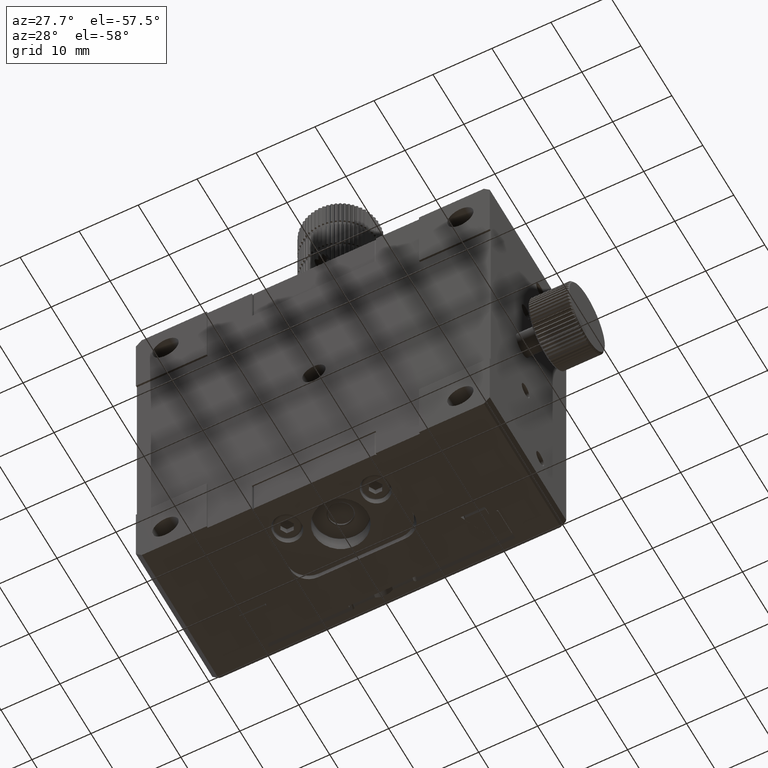
[diagram: clean part render]
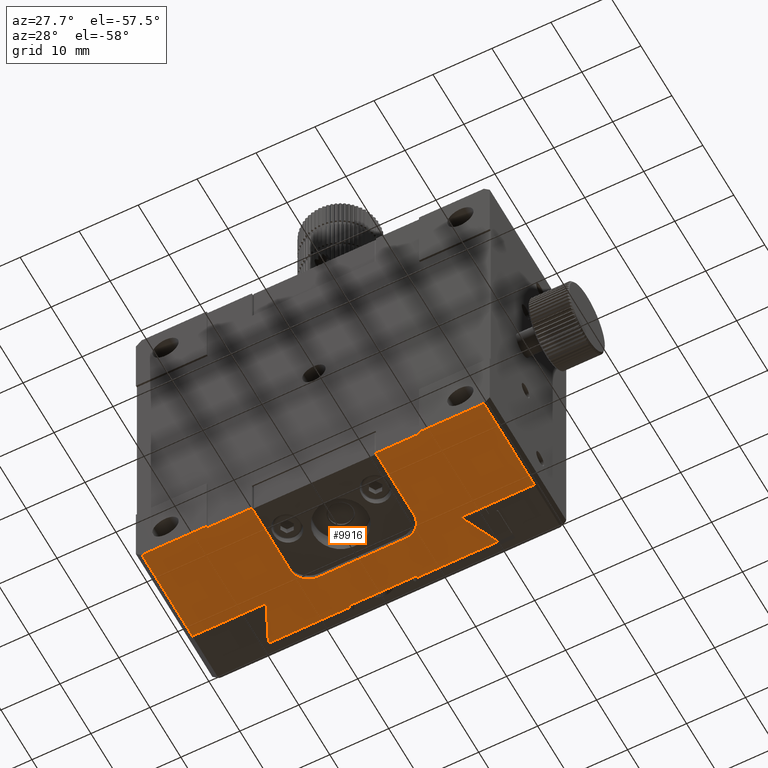
[diagram: same view with one face highlighted and labeled with its STEP entity id]
A machine part, auxiliary view. The second image highlights one B-rep face of the part: STEP entity #9916.
In plain terms, the highlighted planar face has unit normal (0, 0, 1).
Its self-contained STEP definition (entity closure, byte-faithful):
#117 = ORIENTED_EDGE ( 'NONE', *, *, #37127, .F. ) ;
#121 = DIRECTION ( 'NONE',  ( -1.000000000000000000, -0.000000000000000000, 3.491481338843133355E-15 ) ) ;
#279 = B_SPLINE_CURVE_WITH_KNOTS ( 'NONE', 3,
 ( #46081, #31228, #52614, #41584 ),
 .UNSPECIFIED., .F., .F.,
 ( 4, 4 ),
 ( 4.388541835720876531E-17, 0.007103474061609068788 ),
 .UNSPECIFIED. ) ;
#423 = CIRCLE ( 'NONE', #36697, 3.099999999999998757 ) ;
#1437 = EDGE_CURVE ( 'NONE', #58662, #6472, #23815, .T. ) ;
#1724 = CARTESIAN_POINT ( 'NONE',  ( 33.55815170114988177, 52.64446860276291318, 20.22904667704487736 ) ) ;
#1897 = LINE ( 'NONE', #43227, #9222 ) ;
#1946 = CARTESIAN_POINT ( 'NONE',  ( 50.05815170114995283, 36.63657315266980419, 20.22904667704478499 ) ) ;
#2115 = VECTOR ( 'NONE', #14434, 1000.000000000000000 ) ;
#3116 = CARTESIAN_POINT ( 'NONE',  ( 60.55815170114989598, 36.63657315266976866, 20.22904667704478499 ) ) ;
#3283 = ORIENTED_EDGE ( 'NONE', *, *, #56263, .F. ) ;
#3470 = VERTEX_POINT ( 'NONE', #59808 ) ;
#3786 = VECTOR ( 'NONE', #49921, 1000.000000000000000 ) ;
#4047 = EDGE_CURVE ( 'NONE', #34589, #41960, #11108, .T. ) ;
#5155 = CARTESIAN_POINT ( 'NONE',  ( 39.55815170114983914, 36.63657315266986814, 20.22904667704485959 ) ) ;
#5226 = LINE ( 'NONE', #26864, #52893 ) ;
#5785 = VECTOR ( 'NONE', #121, 1000.000000000000000 ) ;
#5806 = CARTESIAN_POINT ( 'NONE',  ( 20.05815170114993862, 52.13657315266983261, 20.22904667704492709 ) ) ;
#5901 = CARTESIAN_POINT ( 'NONE',  ( 44.30815170115005230, 96.33657315266981414, 20.22904667704483828 ) ) ;
#6420 = EDGE_CURVE ( 'NONE', #16758, #54448, #28866, .T. ) ;
#6472 = VERTEX_POINT ( 'NONE', #49565 ) ;
#6678 = LINE ( 'NONE', #44196, #67127 ) ;
#6982 = CARTESIAN_POINT ( 'NONE',  ( 66.55815170114989598, 52.64446860276277107, 20.22904667704476367 ) ) ;
#8015 = DIRECTION ( 'NONE',  ( -1.000000000000000000, -0.000000000000000000, 3.491481338843133355E-15 ) ) ;
#8543 = B_SPLINE_CURVE_WITH_KNOTS ( 'NONE', 3,
 ( #48917, #53418, #17219, #1724 ),
 .UNSPECIFIED., .F., .F.,
 ( 4, 4 ),
 ( 1.372648714548291892E-11, 0.007103474097558771204 ),
 .UNSPECIFIED. ) ;
#8634 = VECTOR ( 'NONE', #18867, 1000.000000000000000 ) ;
#8641 = ORIENTED_EDGE ( 'NONE', *, *, #29646, .F. ) ;
#9222 = VECTOR ( 'NONE', #11553, 1000.000000000000000 ) ;
#9916 = ADVANCED_FACE ( 'NONE', ( #19157 ), #56383, .F. ) ;
#10139 = VECTOR ( 'NONE', #8015, 1000.000000000000000 ) ;
#10722 = LINE ( 'NONE', #5901, #53053 ) ;
#10971 = VECTOR ( 'NONE', #26261, 1000.000000000000000 ) ;
#11108 = LINE ( 'NONE', #27256, #5785 ) ;
#11151 = EDGE_CURVE ( 'NONE', #54302, #30379, #28088, .T. ) ;
#11293 = CARTESIAN_POINT ( 'NONE',  ( 32.05815170114983914, 61.33657315266990651, 20.22904667704488446 ) ) ;
#11482 = LINE ( 'NONE', #21797, #10971 ) ;
#11553 = DIRECTION ( 'NONE',  ( 0.000000000000000000, -1.000000000000000000, -0.000000000000000000 ) ) ;
#11961 = LINE ( 'NONE', #5806, #24570 ) ;
#13824 = ORIENTED_EDGE ( 'NONE', *, *, #65517, .F. ) ;
#13871 = LINE ( 'NONE', #66553, #10139 ) ;
#13904 = EDGE_CURVE ( 'NONE', #35268, #60091, #11482, .T. ) ;
#14434 = DIRECTION ( 'NONE',  ( 1.000000000000000000, 0.000000000000000000, -3.491481338843133355E-15 ) ) ;
#14742 = VECTOR ( 'NONE', #52659, 1000.000000000000000 ) ;
#15845 = EDGE_CURVE ( 'NONE', #52749, #18228, #45189, .T. ) ;
#16338 = CARTESIAN_POINT ( 'NONE',  ( 42.65815170114989030, 52.13657315266983261, 20.22904667704484183 ) ) ;
#16758 = VERTEX_POINT ( 'NONE', #39425 ) ;
#17219 = CARTESIAN_POINT ( 'NONE',  ( 32.54050046062036472, 54.78259068615608385, 20.22904667704488091 ) ) ;
#17952 = ORIENTED_EDGE ( 'NONE', *, *, #54117, .T. ) ;
#18228 = VERTEX_POINT ( 'NONE', #54875 ) ;
#18364 = VERTEX_POINT ( 'NONE', #49598 ) ;
#18867 = DIRECTION ( 'NONE',  ( -3.491481338843133355E-15, -1.000000000000000000, 1.319990104689419209E-29 ) ) ;
#18925 = CARTESIAN_POINT ( 'NONE',  ( 60.55815170114989598, 49.03657315266977434, 20.22904667704477788 ) ) ;
#19036 = VERTEX_POINT ( 'NONE', #19376 ) ;
#19040 = ORIENTED_EDGE ( 'NONE', *, *, #33404, .T. ) ;
#19157 = FACE_OUTER_BOUND ( 'NONE', #35238, .T. ) ;
#19376 = CARTESIAN_POINT ( 'NONE',  ( 32.05815170114983914, 36.33657315266987098, 20.22904667704490222 ) ) ;
#20661 = ORIENTED_EDGE ( 'NONE', *, *, #25408, .F. ) ;
#20844 = EDGE_CURVE ( 'NONE', #3470, #31656, #53438, .T. ) ;
#21797 = CARTESIAN_POINT ( 'NONE',  ( 20.05815170114993862, 59.08938087432366615, 20.22904667704492709 ) ) ;
#22223 = ORIENTED_EDGE ( 'NONE', *, *, #1437, .F. ) ;
#23815 = LINE ( 'NONE', #50381, #29690 ) ;
#24179 = EDGE_CURVE ( 'NONE', #54670, #58379, #8543, .T. ) ;
#24189 = DIRECTION ( 'NONE',  ( -0.000000000000000000, 1.000000000000000000, 0.000000000000000000 ) ) ;
#24225 = DIRECTION ( 'NONE',  ( -1.000000000000000000, -0.000000000000000000, 3.491481338843133355E-15 ) ) ;
#24570 = VECTOR ( 'NONE', #32277, 1000.000000000000000 ) ;
#25348 = CARTESIAN_POINT ( 'NONE',  ( 57.45815170114989456, 49.03657315266978145, 20.22904667704478143 ) ) ;
#25408 = EDGE_CURVE ( 'NONE', #18364, #53037, #423, .T. ) ;
#26192 = ORIENTED_EDGE ( 'NONE', *, *, #4047, .F. ) ;
#26261 = DIRECTION ( 'NONE',  ( -1.000000000000000000, -0.000000000000000000, 3.491481338843133355E-15 ) ) ;
#26856 = VECTOR ( 'NONE', #66574, 1000.000000000000000 ) ;
#26864 = CARTESIAN_POINT ( 'NONE',  ( 50.05815170114989598, 52.64446860276287055, 20.22904667704481696 ) ) ;
#27256 = CARTESIAN_POINT ( 'NONE',  ( 20.05815170114993862, 58.80255524890677066, 20.22904667704492709 ) ) ;
#27588 = CARTESIAN_POINT ( 'NONE',  ( 20.05815170114993862, 36.33657315266990651, 20.22904667704492709 ) ) ;
#28088 = LINE ( 'NONE', #1946, #30474 ) ;
#28101 = AXIS2_PLACEMENT_3D ( 'NONE', #51780, #34270, #39797 ) ;
#28866 = LINE ( 'NONE', #60567, #3786 ) ;
#29280 = VECTOR ( 'NONE', #24225, 1000.000000000000000 ) ;
#29477 = DIRECTION ( 'NONE',  ( 3.491481338843133355E-15, 0.000000000000000000, 1.000000000000000000 ) ) ;
#29566 = ORIENTED_EDGE ( 'NONE', *, *, #32419, .F. ) ;
#29646 = EDGE_CURVE ( 'NONE', #30379, #67406, #60540, .T. ) ;
#29690 = VECTOR ( 'NONE', #38291, 1000.000000000000000 ) ;
#30168 = DIRECTION ( 'NONE',  ( 1.000000000000000000, 0.000000000000000000, -3.491481338843133355E-15 ) ) ;
#30379 = VERTEX_POINT ( 'NONE', #43427 ) ;
#30474 = VECTOR ( 'NONE', #64278, 1000.000000000000000 ) ;
#31228 = CARTESIAN_POINT ( 'NONE',  ( 67.57580293849511577, 54.78259067946557792, 20.22904667704476012 ) ) ;
#31656 = VERTEX_POINT ( 'NONE', #16338 ) ;
#31747 = EDGE_CURVE ( 'NONE', #54448, #3470, #6678, .T. ) ;
#32277 = DIRECTION ( 'NONE',  ( 1.000000000000000000, 0.000000000000000000, -3.491481338843133355E-15 ) ) ;
#32375 = DIRECTION ( 'NONE',  ( -3.491481338843133355E-15, -1.000000000000000000, 1.219044193948983948E-29 ) ) ;
#32419 = EDGE_CURVE ( 'NONE', #65373, #35268, #279, .T. ) ;
#32610 = LINE ( 'NONE', #11293, #14742 ) ;
#33300 = CARTESIAN_POINT ( 'NONE',  ( 30.57110469794940855, 59.08938087992758881, 20.22904673143565546 ) ) ;
#33404 = EDGE_CURVE ( 'NONE', #34589, #60091, #34873, .T. ) ;
#34270 = DIRECTION ( 'NONE',  ( -3.491481338843133355E-15, -0.000000000000000000, -1.000000000000000000 ) ) ;
#34589 = VERTEX_POINT ( 'NONE', #51452 ) ;
#34873 = LINE ( 'NONE', #35202, #26856 ) ;
#35202 = CARTESIAN_POINT ( 'NONE',  ( 55.80815170115004520, 96.33657315266978571, 20.22904667704480985 ) ) ;
#35238 = EDGE_LOOP ( 'NONE', ( #54973, #29566, #13824, #22223, #43995, #8641, #52676, #41995, #20661, #3283, #63829, #59347, #44927, #35710, #35630, #35999, #43984, #39444, #117, #17952, #26192, #19040 ) ) ;
#35268 = VERTEX_POINT ( 'NONE', #51706 ) ;
#35630 = ORIENTED_EDGE ( 'NONE', *, *, #63346, .F. ) ;
#35710 = ORIENTED_EDGE ( 'NONE', *, *, #41718, .F. ) ;
#35999 = ORIENTED_EDGE ( 'NONE', *, *, #15845, .F. ) ;
#36360 = DIRECTION ( 'NONE',  ( -3.491481338843133355E-15, 0.000000000000000000, -1.000000000000000000 ) ) ;
#36697 = AXIS2_PLACEMENT_3D ( 'NONE', #25348, #36360, #61896 ) ;
#37127 = EDGE_CURVE ( 'NONE', #59053, #54670, #55951, .T. ) ;
#37569 = VECTOR ( 'NONE', #44505, 1000.000000000000000 ) ;
#38291 = DIRECTION ( 'NONE',  ( -0.000000000000000000, 1.000000000000000000, 0.000000000000000000 ) ) ;
#39425 = CARTESIAN_POINT ( 'NONE',  ( 32.05815170114985335, 36.63657315266986814, 20.22904667704488446 ) ) ;
#39444 = ORIENTED_EDGE ( 'NONE', *, *, #24179, .F. ) ;
#39797 = DIRECTION ( 'NONE',  ( 1.000000000000000000, 0.000000000000000000, -3.357529308342208488E-15 ) ) ;
#40220 = CARTESIAN_POINT ( 'NONE',  ( 68.05815170114983914, 36.63657315266974024, 20.22904667704477077 ) ) ;
#41584 = CARTESIAN_POINT ( 'NONE',  ( 69.54519867447747572, 59.08938086927874167, 20.22904666216995651 ) ) ;
#41718 = EDGE_CURVE ( 'NONE', #19036, #16758, #32610, .T. ) ;
#41960 = VERTEX_POINT ( 'NONE', #64650 ) ;
#41995 = ORIENTED_EDGE ( 'NONE', *, *, #47255, .F. ) ;
#43227 = CARTESIAN_POINT ( 'NONE',  ( 60.55815170114989598, 61.33657315266990651, 20.22904667704478499 ) ) ;
#43427 = CARTESIAN_POINT ( 'NONE',  ( 68.05815170114983914, 36.63657315266975445, 20.22904667704476722 ) ) ;
#43984 = ORIENTED_EDGE ( 'NONE', *, *, #57548, .F. ) ;
#43995 = ORIENTED_EDGE ( 'NONE', *, *, #60455, .F. ) ;
#44196 = CARTESIAN_POINT ( 'NONE',  ( 39.55815170114983914, 61.33657315266990651, 20.22904667704485959 ) ) ;
#44502 = CARTESIAN_POINT ( 'NONE',  ( 55.80815170114991730, 59.08938087432369457, 20.22904667704480275 ) ) ;
#44505 = DIRECTION ( 'NONE',  ( 0.000000000000000000, -1.000000000000000000, -0.000000000000000000 ) ) ;
#44927 = ORIENTED_EDGE ( 'NONE', *, *, #6420, .F. ) ;
#45020 = LINE ( 'NONE', #59847, #66175 ) ;
#45189 = LINE ( 'NONE', #50725, #37569 ) ;
#45699 = CARTESIAN_POINT ( 'NONE',  ( 20.05815170114993862, 61.33657315266990651, 20.22904667704492709 ) ) ;
#46081 = CARTESIAN_POINT ( 'NONE',  ( 66.55815170114989598, 52.64446860276277107, 20.22904667704476367 ) ) ;
#47095 = CARTESIAN_POINT ( 'NONE',  ( 68.05815170114983914, 36.33657315266974308, 20.22904667704476722 ) ) ;
#47255 = EDGE_CURVE ( 'NONE', #53037, #54302, #1897, .T. ) ;
#48917 = CARTESIAN_POINT ( 'NONE',  ( 30.57110469794940855, 59.08938087992758881, 20.22904673143565546 ) ) ;
#49565 = CARTESIAN_POINT ( 'NONE',  ( 79.05815170114986756, 52.64446860276272844, 20.22904667704472104 ) ) ;
#49598 = CARTESIAN_POINT ( 'NONE',  ( 57.45815170114989456, 52.13657315266980419, 20.22904667704478143 ) ) ;
#49921 = DIRECTION ( 'NONE',  ( 1.000000000000000000, -3.491481338843133355E-15, 0.000000000000000000 ) ) ;
#50381 = CARTESIAN_POINT ( 'NONE',  ( 79.05815170114983914, 61.33657315266990651, 20.22904667704472459 ) ) ;
#50624 = LINE ( 'NONE', #27588, #2115 ) ;
#50725 = CARTESIAN_POINT ( 'NONE',  ( 21.05815170114991020, 61.33657315266990651, 20.22904667704492354 ) ) ;
#51452 = CARTESIAN_POINT ( 'NONE',  ( 55.80815170114991730, 58.80255524890676355, 20.22904667704480630 ) ) ;
#51481 = CARTESIAN_POINT ( 'NONE',  ( 20.05815170114993862, 59.08938087432376562, 20.22904667704492709 ) ) ;
#51706 = CARTESIAN_POINT ( 'NONE',  ( 69.54519867447747572, 59.08938086927874167, 20.22904666216995651 ) ) ;
#51780 = CARTESIAN_POINT ( 'NONE',  ( 42.65815170114988319, 49.03657315266984540, 20.22904667704483472 ) ) ;
#52555 = CARTESIAN_POINT ( 'NONE',  ( 21.05815170114991375, 52.64446860276293449, 20.22904667704491999 ) ) ;
#52614 = CARTESIAN_POINT ( 'NONE',  ( 68.57410751215059008, 56.92967942500816036, 20.22904667704475656 ) ) ;
#52659 = DIRECTION ( 'NONE',  ( -0.000000000000000000, 1.000000000000000000, 0.000000000000000000 ) ) ;
#52676 = ORIENTED_EDGE ( 'NONE', *, *, #11151, .F. ) ;
#52749 = VERTEX_POINT ( 'NONE', #52555 ) ;
#52893 = VECTOR ( 'NONE', #57928, 1000.000000000000000 ) ;
#53037 = VERTEX_POINT ( 'NONE', #18925 ) ;
#53053 = VECTOR ( 'NONE', #32375, 1000.000000000000000 ) ;
#53418 = CARTESIAN_POINT ( 'NONE',  ( 31.54219587820414361, 56.92967945082794756, 20.22904667704488446 ) ) ;
#53438 = CIRCLE ( 'NONE', #28101, 3.099999999999998757 ) ;
#54117 = EDGE_CURVE ( 'NONE', #59053, #41960, #10722, .T. ) ;
#54302 = VERTEX_POINT ( 'NONE', #3116 ) ;
#54360 = DIRECTION ( 'NONE',  ( 1.000000000000000000, 0.000000000000000000, -3.491481338843133355E-15 ) ) ;
#54448 = VERTEX_POINT ( 'NONE', #5155 ) ;
#54670 = VERTEX_POINT ( 'NONE', #33300 ) ;
#54875 = CARTESIAN_POINT ( 'NONE',  ( 21.05815170114989954, 36.33657315266990651, 20.22904667704490933 ) ) ;
#54973 = ORIENTED_EDGE ( 'NONE', *, *, #13904, .F. ) ;
#55951 = LINE ( 'NONE', #51481, #29280 ) ;
#56263 = EDGE_CURVE ( 'NONE', #31656, #18364, #11961, .T. ) ;
#56383 = PLANE ( 'NONE',  #67820 ) ;
#57548 = EDGE_CURVE ( 'NONE', #58379, #52749, #5226, .T. ) ;
#57724 = CARTESIAN_POINT ( 'NONE',  ( 33.55815170114988177, 52.64446860276291318, 20.22904667704487736 ) ) ;
#57928 = DIRECTION ( 'NONE',  ( -1.000000000000000000, 3.491481338843133355E-15, 3.491481338843133355E-15 ) ) ;
#58379 = VERTEX_POINT ( 'NONE', #57724 ) ;
#58487 = CARTESIAN_POINT ( 'NONE',  ( 44.30815170114991020, 59.08938087432377273, 20.22904667704484183 ) ) ;
#58662 = VERTEX_POINT ( 'NONE', #62386 ) ;
#59053 = VERTEX_POINT ( 'NONE', #58487 ) ;
#59347 = ORIENTED_EDGE ( 'NONE', *, *, #31747, .F. ) ;
#59808 = CARTESIAN_POINT ( 'NONE',  ( 39.55815170114986046, 49.03657315266984540, 20.22904667704484538 ) ) ;
#59847 = CARTESIAN_POINT ( 'NONE',  ( 20.05815170114993862, 36.33657315266974308, 20.22904667704492709 ) ) ;
#60091 = VERTEX_POINT ( 'NONE', #44502 ) ;
#60455 = EDGE_CURVE ( 'NONE', #67406, #58662, #45020, .T. ) ;
#60540 = LINE ( 'NONE', #40220, #8634 ) ;
#60567 = CARTESIAN_POINT ( 'NONE',  ( 50.05815170114995283, 36.63657315266980419, 20.22904667704488801 ) ) ;
#61896 = DIRECTION ( 'NONE',  ( -1.000000000000000000, 0.000000000000000000, 3.357529308342208488E-15 ) ) ;
#62386 = CARTESIAN_POINT ( 'NONE',  ( 79.05815170114983914, 36.33657315266972176, 20.22904667704472459 ) ) ;
#63346 = EDGE_CURVE ( 'NONE', #18228, #19036, #50624, .T. ) ;
#63829 = ORIENTED_EDGE ( 'NONE', *, *, #20844, .F. ) ;
#64278 = DIRECTION ( 'NONE',  ( 1.000000000000000000, -3.491481338843133355E-15, 0.000000000000000000 ) ) ;
#64650 = CARTESIAN_POINT ( 'NONE',  ( 44.30815170114991730, 58.80255524890679197, 20.22904667704484183 ) ) ;
#65373 = VERTEX_POINT ( 'NONE', #6982 ) ;
#65517 = EDGE_CURVE ( 'NONE', #6472, #65373, #13871, .T. ) ;
#66175 = VECTOR ( 'NONE', #54360, 1000.000000000000000 ) ;
#66553 = CARTESIAN_POINT ( 'NONE',  ( 20.05815170114993862, 52.64446860276273554, 20.22904667704492709 ) ) ;
#66574 = DIRECTION ( 'NONE',  ( 3.491481338843133355E-15, 1.000000000000000000, -1.219044193948983948E-29 ) ) ;
#67127 = VECTOR ( 'NONE', #24189, 1000.000000000000000 ) ;
#67406 = VERTEX_POINT ( 'NONE', #47095 ) ;
#67820 = AXIS2_PLACEMENT_3D ( 'NONE', #45699, #29477, #30168 ) ;